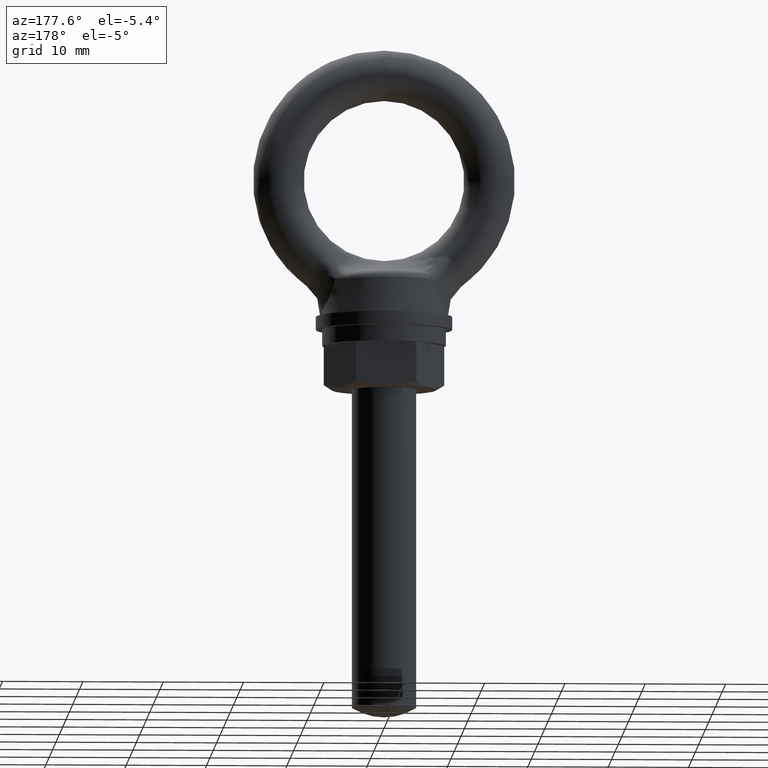
[diagram: clean part render]
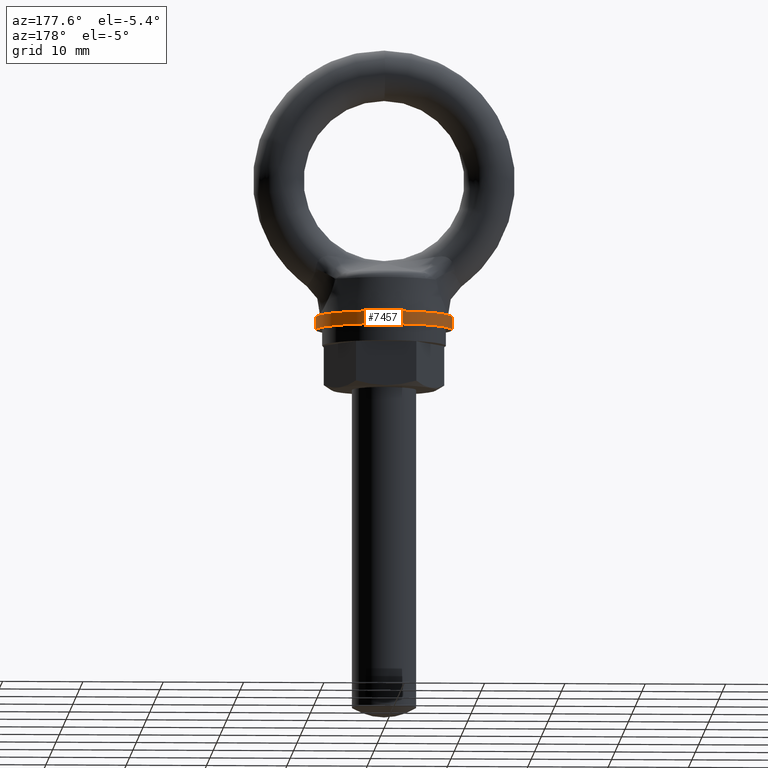
[diagram: same view with one face highlighted and labeled with its STEP entity id]
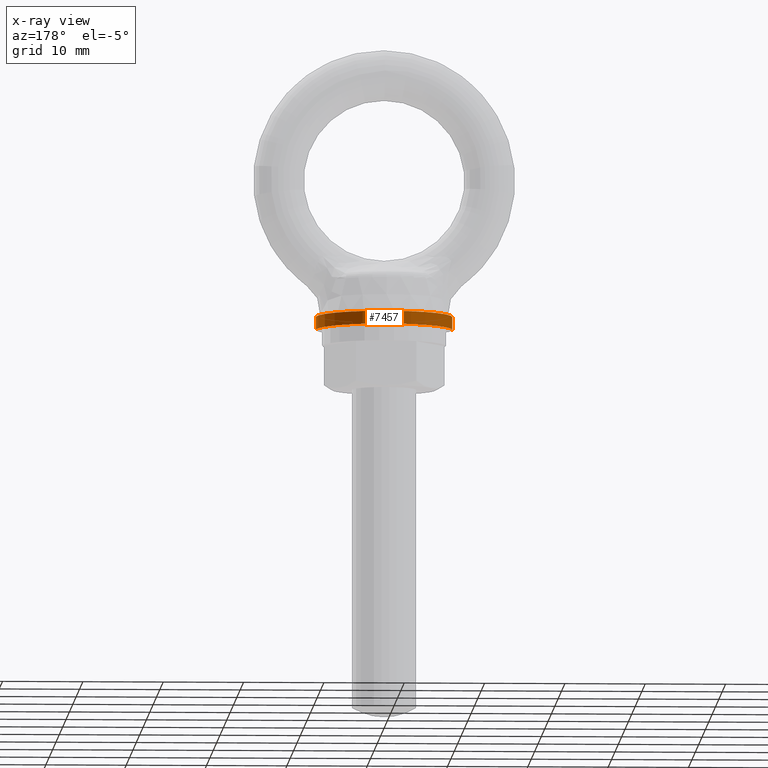
[diagram: x-ray of the same camera — body ghosted, the highlighted face saturated]
A machine part, auxiliary view. The second image highlights one B-rep face of the part: STEP entity #7457.
The next image is the same camera in x-ray: the body ghosted, the highlighted face saturated — about 0% of this face is hidden behind the body in this view.
In plain terms, the highlighted cylindrical surface (partial cylindrical patch) has radius 8.5 mm, axis along (0, 0, -1).
Its self-contained STEP definition (entity closure, byte-faithful):
#1812 = VERTEX_POINT ( 'NONE', #6456 ) ;
#2038 = ORIENTED_EDGE ( 'NONE', *, *, #2039, .F. ) ;
#2039 = EDGE_CURVE ( 'NONE', #7453, #7459, #7030, .T. ) ;
#6456 = CARTESIAN_POINT ( 'NONE',  ( 8.500000000000000000, 1.040915400749020900E-015, -17.00000000000000000 ) ) ;
#6974 = DIRECTION ( 'NONE',  ( 0.0000000000000000000, 0.0000000000000000000, -1.000000000000000000 ) ) ;
#6975 = VECTOR ( 'NONE', #6974, 1000.000000000000000 ) ;
#6976 = CARTESIAN_POINT ( 'NONE',  ( -8.500000000000000000, 0.0000000000000000000, 981.4000009999999700 ) ) ;
#7030 = LINE ( 'NONE', #6976, #6975 ) ;
#7155 = DIRECTION ( 'NONE',  ( 1.000000000000000000, 0.0000000000000000000, 0.0000000000000000000 ) ) ;
#7156 = DIRECTION ( 'NONE',  ( 0.0000000000000000000, 0.0000000000000000000, -1.000000000000000000 ) ) ;
#7157 = CARTESIAN_POINT ( 'NONE',  ( 0.0000000000000000000, 0.0000000000000000000, -17.00000000000000000 ) ) ;
#7158 = AXIS2_PLACEMENT_3D ( 'NONE', #7157, #7156, #7155 ) ;
#7164 = CIRCLE ( 'NONE', #7158, 8.500000000000000000 ) ;
#7167 = DIRECTION ( 'NONE',  ( 1.000000000000000000, 0.0000000000000000000, 0.0000000000000000000 ) ) ;
#7168 = DIRECTION ( 'NONE',  ( 0.0000000000000000000, 0.0000000000000000000, -1.000000000000000000 ) ) ;
#7169 = CARTESIAN_POINT ( 'NONE',  ( 0.0000000000000000000, 0.0000000000000000000, -18.59999900000000000 ) ) ;
#7170 = AXIS2_PLACEMENT_3D ( 'NONE', #7169, #7168, #7167 ) ;
#7171 = CIRCLE ( 'NONE', #7170, 8.500000000000000000 ) ;
#7250 = CARTESIAN_POINT ( 'NONE',  ( -8.500000000000000000, 0.0000000000000000000, -18.59999900000000000 ) ) ;
#7251 = DIRECTION ( 'NONE',  ( -1.000000000000000000, 0.0000000000000000000, 0.0000000000000000000 ) ) ;
#7252 = AXIS2_PLACEMENT_3D ( 'NONE', #7263, #7261, #7251 ) ;
#7259 = CYLINDRICAL_SURFACE ( 'NONE', #7252, 8.500000000000000000 ) ;
#7260 = FACE_OUTER_BOUND ( 'NONE', #7456, .T. ) ;
#7261 = DIRECTION ( 'NONE',  ( 0.0000000000000000000, 0.0000000000000000000, -1.000000000000000000 ) ) ;
#7263 = CARTESIAN_POINT ( 'NONE',  ( 0.0000000000000000000, 0.0000000000000000000, 981.4000009999999700 ) ) ;
#7264 = CARTESIAN_POINT ( 'NONE',  ( -8.500000000000000000, 0.0000000000000000000, -17.00000000000000000 ) ) ;
#7290 = CARTESIAN_POINT ( 'NONE',  ( 8.500000000000000000, 1.040915400749020900E-015, -18.59999900000000000 ) ) ;
#7291 = DIRECTION ( 'NONE',  ( 0.0000000000000000000, 0.0000000000000000000, -1.000000000000000000 ) ) ;
#7292 = VECTOR ( 'NONE', #7291, 1000.000000000000000 ) ;
#7293 = CARTESIAN_POINT ( 'NONE',  ( 8.500000000000000000, 1.040915400749020900E-015, 981.4000009999999700 ) ) ;
#7294 = LINE ( 'NONE', #7293, #7292 ) ;
#7448 = ORIENTED_EDGE ( 'NONE', *, *, #7468, .F. ) ;
#7453 = VERTEX_POINT ( 'NONE', #7264 ) ;
#7456 = EDGE_LOOP ( 'NONE', ( #7473, #7484, #7448, #2038 ) ) ;
#7457 = ADVANCED_FACE ( 'NONE', ( #7260 ), #7259, .T. ) ;
#7459 = VERTEX_POINT ( 'NONE', #7250 ) ;
#7468 = EDGE_CURVE ( 'NONE', #7459, #7481, #7171, .T. ) ;
#7473 = ORIENTED_EDGE ( 'NONE', *, *, #7474, .T. ) ;
#7474 = EDGE_CURVE ( 'NONE', #7453, #1812, #7164, .T. ) ;
#7480 = EDGE_CURVE ( 'NONE', #1812, #7481, #7294, .T. ) ;
#7481 = VERTEX_POINT ( 'NONE', #7290 ) ;
#7484 = ORIENTED_EDGE ( 'NONE', *, *, #7480, .T. ) ;